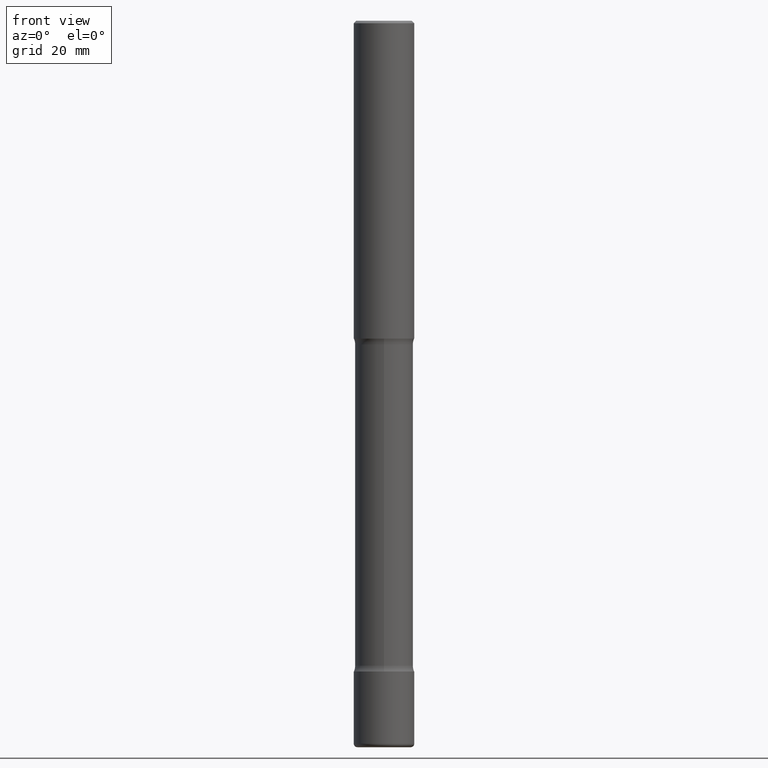
[diagram: clean part render]
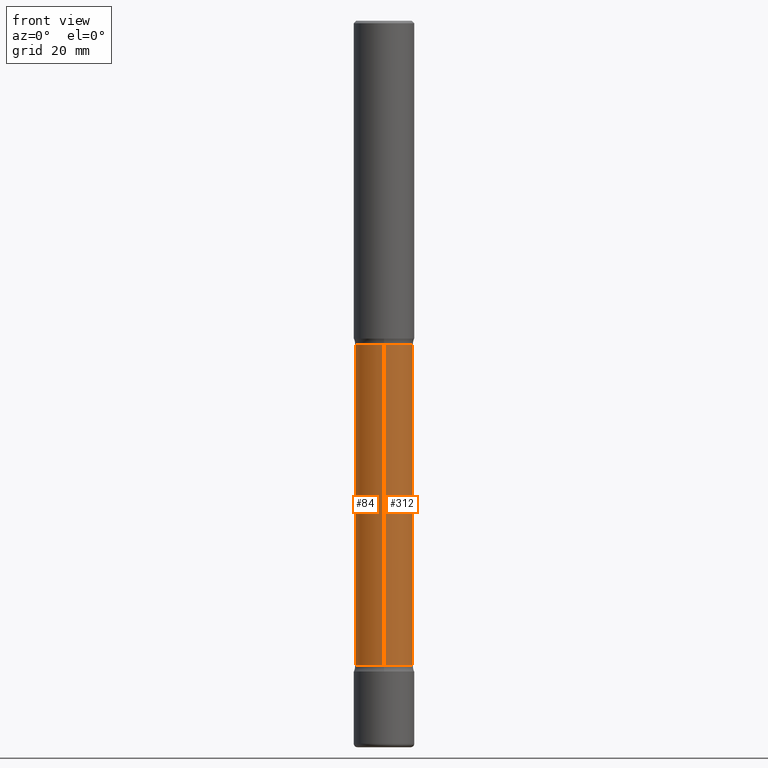
[diagram: same view with one multi-face feature highlighted, each face labeled with its STEP entity id]
A machine part, front view. The highlighted faces form ONE feature: a constant-radius fillet chain: 2 tangent blend faces with common blend radius 6.096 mm. The faces share edges in the B-rep.
Their STEP definitions:
[1] entity #312 (Cylinder):
#82 = CARTESIAN_POINT ( 'NONE',  ( 5.817801196841161723E-29, -1.036921037236620195E-14, -2.673989794855665458 ) ) ;
#92 = CARTESIAN_POINT ( 'NONE',  ( 1.675911042644855432E-15, 0.2399999999999797573, -6.000000000000001776 ) ) ;
#107 = CYLINDRICAL_SURFACE ( 'NONE', #140, 0.2400000000000004352 ) ;
#110 = DIRECTION ( 'NONE',  ( 6.982962677686265922E-15, 1.000000000000000000, -4.553079989440430414E-15 ) ) ;
#132 = LINE ( 'NONE', #552, #541 ) ;
#138 = EDGE_CURVE ( 'NONE', #457, #235, #347, .T. ) ;
#140 = AXIS2_PLACEMENT_3D ( 'NONE', #280, #192, #110 ) ;
#141 = CIRCLE ( 'NONE', #151, 0.2399999999999999911 ) ;
#151 = AXIS2_PLACEMENT_3D ( 'NONE', #376, #471, #334 ) ;
#183 = CARTESIAN_POINT ( 'NONE',  ( -1.680822009453894668E-15, -0.2400000000000186151, -5.326010205144335430 ) ) ;
#192 = DIRECTION ( 'NONE',  ( 2.712538302317311845E-29, -3.109022619730148535E-15, -1.000000000000000000 ) ) ;
#201 = VERTEX_POINT ( 'NONE', #555 ) ;
#220 = ORIENTED_EDGE ( 'NONE', *, *, #501, .F. ) ;
#235 = VERTEX_POINT ( 'NONE', #452 ) ;
#245 = CARTESIAN_POINT ( 'NONE',  ( 1.675911042644767869E-15, 0.2399999999999904710, -2.673989794855665902 ) ) ;
#251 = AXIS2_PLACEMENT_3D ( 'NONE', #82, #329, #509 ) ;
#260 = EDGE_CURVE ( 'NONE', #457, #201, #524, .T. ) ;
#267 = VERTEX_POINT ( 'NONE', #183 ) ;
#280 = CARTESIAN_POINT ( 'NONE',  ( 1.483973127219342911E-28, -2.070985133361325197E-14, -6.000000000000000888 ) ) ;
#309 = DIRECTION ( 'NONE',  ( 2.712538302317311845E-29, -3.109022619730148535E-15, -1.000000000000000000 ) ) ;
#312 = ADVANCED_FACE ( 'NONE', ( #488 ), #107, .T. ) ;
#315 = EDGE_LOOP ( 'NONE', ( #363, #360, #220, #322 ) ) ;
#322 = ORIENTED_EDGE ( 'NONE', *, *, #260, .F. ) ;
#329 = DIRECTION ( 'NONE',  ( 2.712538302317311845E-29, -3.109022619730148535E-15, -1.000000000000000000 ) ) ;
#334 = DIRECTION ( 'NONE',  ( 6.982962677686265922E-15, 1.000000000000000000, -4.553079989440439092E-15 ) ) ;
#347 = CIRCLE ( 'NONE', #251, 0.2400000000000008515 ) ;
#360 = ORIENTED_EDGE ( 'NONE', *, *, #531, .T. ) ;
#363 = ORIENTED_EDGE ( 'NONE', *, *, #138, .T. ) ;
#376 = CARTESIAN_POINT ( 'NONE',  ( 1.301150813827645584E-28, -1.861440181593971258E-14, -5.326010205144336318 ) ) ;
#425 = VECTOR ( 'NONE', #309, 39.37007874015748143 ) ;
#452 = CARTESIAN_POINT ( 'NONE',  ( -1.680822009453975329E-15, -0.2400000000000112321, -2.673989794855665014 ) ) ;
#457 = VERTEX_POINT ( 'NONE', #245 ) ;
#471 = DIRECTION ( 'NONE',  ( 2.712538302317311845E-29, -3.109022619730148535E-15, -1.000000000000000000 ) ) ;
#488 = FACE_OUTER_BOUND ( 'NONE', #315, .T. ) ;
#501 = EDGE_CURVE ( 'NONE', #201, #267, #141, .T. ) ;
#509 = DIRECTION ( 'NONE',  ( 6.982962677686265922E-15, 1.000000000000000000, -2.276539994720211263E-15 ) ) ;
#516 = DIRECTION ( 'NONE',  ( 2.712538302317311845E-29, -3.109022619730148535E-15, -1.000000000000000000 ) ) ;
#524 = LINE ( 'NONE', #92, #425 ) ;
#531 = EDGE_CURVE ( 'NONE', #235, #267, #132, .T. ) ;
#541 = VECTOR ( 'NONE', #516, 39.37007874015748143 ) ;
#552 = CARTESIAN_POINT ( 'NONE',  ( -1.646519519465022014E-15, -0.2400000000000211409, -5.999999999999999112 ) ) ;
#555 = CARTESIAN_POINT ( 'NONE',  ( 1.675911042644833936E-15, 0.2399999999999813949, -5.326010205144338094 ) ) ;
[2] entity #84 (Cylinder):
#26 = CARTESIAN_POINT ( 'NONE',  ( 5.817801196841161723E-29, -1.036921037236620195E-14, -2.673989794855665458 ) ) ;
#28 = FACE_OUTER_BOUND ( 'NONE', #102, .T. ) ;
#84 = ADVANCED_FACE ( 'NONE', ( #28 ), #123, .T. ) ;
#92 = CARTESIAN_POINT ( 'NONE',  ( 1.675911042644855432E-15, 0.2399999999999797573, -6.000000000000001776 ) ) ;
#94 = ORIENTED_EDGE ( 'NONE', *, *, #416, .F. ) ;
#102 = EDGE_LOOP ( 'NONE', ( #106, #226, #224, #94 ) ) ;
#106 = ORIENTED_EDGE ( 'NONE', *, *, #531, .F. ) ;
#116 = DIRECTION ( 'NONE',  ( 2.712538302317311845E-29, -3.109022619730148535E-15, -1.000000000000000000 ) ) ;
#123 = CYLINDRICAL_SURFACE ( 'NONE', #207, 0.2400000000000004352 ) ;
#132 = LINE ( 'NONE', #552, #541 ) ;
#183 = CARTESIAN_POINT ( 'NONE',  ( -1.680822009453894668E-15, -0.2400000000000186151, -5.326010205144335430 ) ) ;
#201 = VERTEX_POINT ( 'NONE', #555 ) ;
#207 = AXIS2_PLACEMENT_3D ( 'NONE', #208, #324, #458 ) ;
#208 = CARTESIAN_POINT ( 'NONE',  ( 1.483973127219342911E-28, -2.070985133361325197E-14, -6.000000000000000888 ) ) ;
#224 = ORIENTED_EDGE ( 'NONE', *, *, #260, .T. ) ;
#226 = ORIENTED_EDGE ( 'NONE', *, *, #427, .T. ) ;
#235 = VERTEX_POINT ( 'NONE', #452 ) ;
#245 = CARTESIAN_POINT ( 'NONE',  ( 1.675911042644767869E-15, 0.2399999999999904710, -2.673989794855665902 ) ) ;
#260 = EDGE_CURVE ( 'NONE', #457, #201, #524, .T. ) ;
#267 = VERTEX_POINT ( 'NONE', #183 ) ;
#270 = CIRCLE ( 'NONE', #370, 0.2400000000000008515 ) ;
#279 = AXIS2_PLACEMENT_3D ( 'NONE', #321, #116, #318 ) ;
#309 = DIRECTION ( 'NONE',  ( 2.712538302317311845E-29, -3.109022619730148535E-15, -1.000000000000000000 ) ) ;
#318 = DIRECTION ( 'NONE',  ( 6.982962677686265922E-15, 1.000000000000000000, -4.553079989440439092E-15 ) ) ;
#321 = CARTESIAN_POINT ( 'NONE',  ( 1.301150813827645584E-28, -1.861440181593971258E-14, -5.326010205144336318 ) ) ;
#324 = DIRECTION ( 'NONE',  ( 2.712538302317311845E-29, -3.109022619730148535E-15, -1.000000000000000000 ) ) ;
#361 = DIRECTION ( 'NONE',  ( 6.982962677686265922E-15, 1.000000000000000000, -2.276539994720211263E-15 ) ) ;
#370 = AXIS2_PLACEMENT_3D ( 'NONE', #26, #408, #361 ) ;
#408 = DIRECTION ( 'NONE',  ( 2.712538302317311845E-29, -3.109022619730148535E-15, -1.000000000000000000 ) ) ;
#416 = EDGE_CURVE ( 'NONE', #267, #201, #441, .T. ) ;
#425 = VECTOR ( 'NONE', #309, 39.37007874015748143 ) ;
#427 = EDGE_CURVE ( 'NONE', #235, #457, #270, .T. ) ;
#441 = CIRCLE ( 'NONE', #279, 0.2399999999999999911 ) ;
#452 = CARTESIAN_POINT ( 'NONE',  ( -1.680822009453975329E-15, -0.2400000000000112321, -2.673989794855665014 ) ) ;
#457 = VERTEX_POINT ( 'NONE', #245 ) ;
#458 = DIRECTION ( 'NONE',  ( 6.982962677686265922E-15, 1.000000000000000000, -4.553079989440430414E-15 ) ) ;
#516 = DIRECTION ( 'NONE',  ( 2.712538302317311845E-29, -3.109022619730148535E-15, -1.000000000000000000 ) ) ;
#524 = LINE ( 'NONE', #92, #425 ) ;
#531 = EDGE_CURVE ( 'NONE', #235, #267, #132, .T. ) ;
#541 = VECTOR ( 'NONE', #516, 39.37007874015748143 ) ;
#552 = CARTESIAN_POINT ( 'NONE',  ( -1.646519519465022014E-15, -0.2400000000000211409, -5.999999999999999112 ) ) ;
#555 = CARTESIAN_POINT ( 'NONE',  ( 1.675911042644833936E-15, 0.2399999999999813949, -5.326010205144338094 ) ) ;